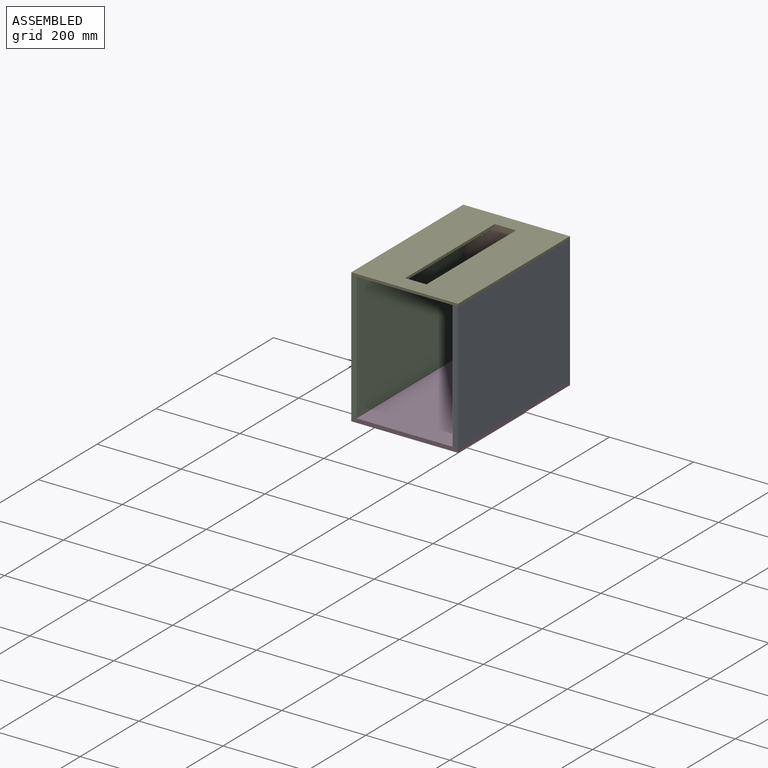
[diagram: assembled view]
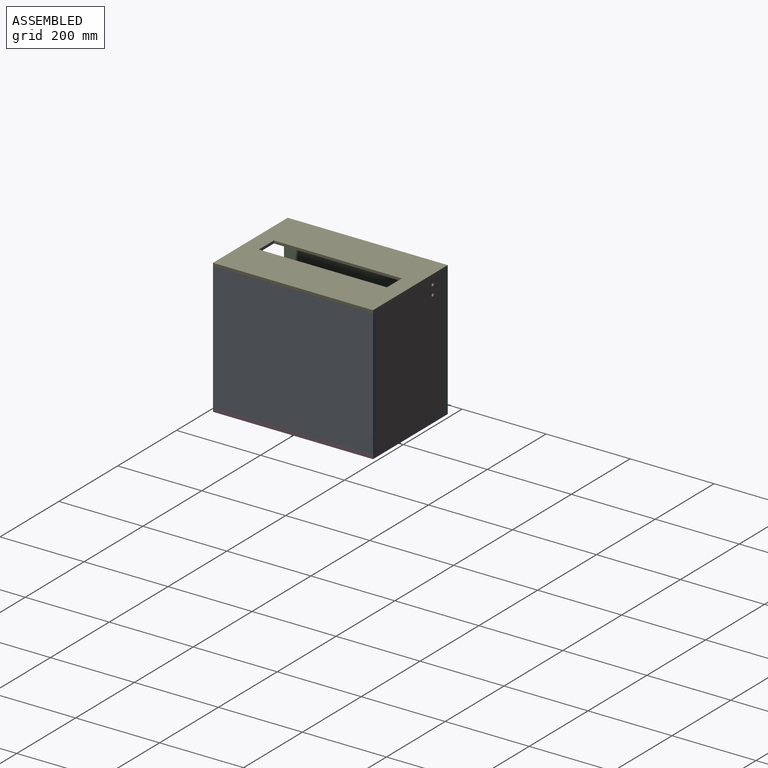
[diagram: assembled view, second angle]
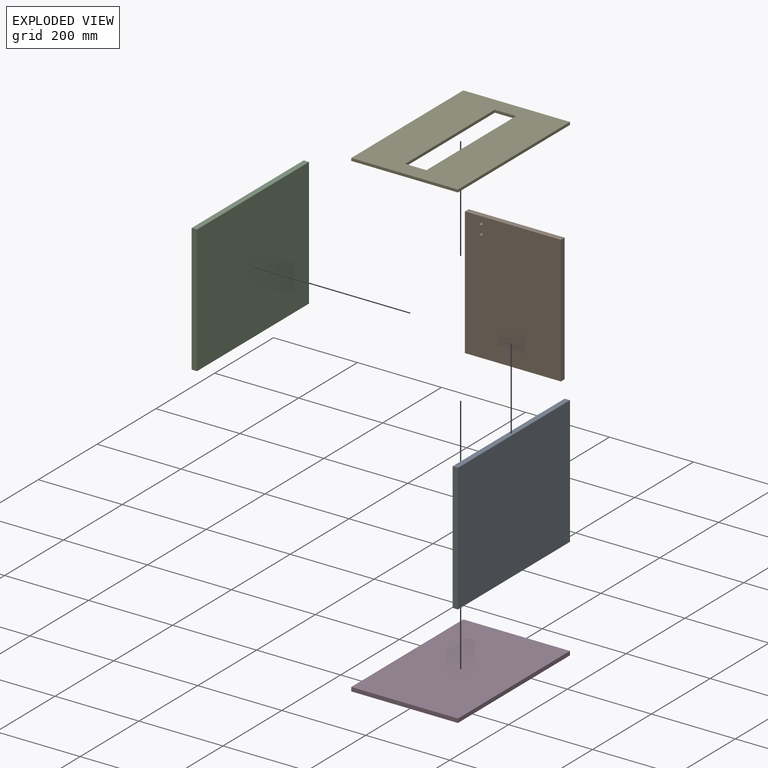
[diagram: exploded view]
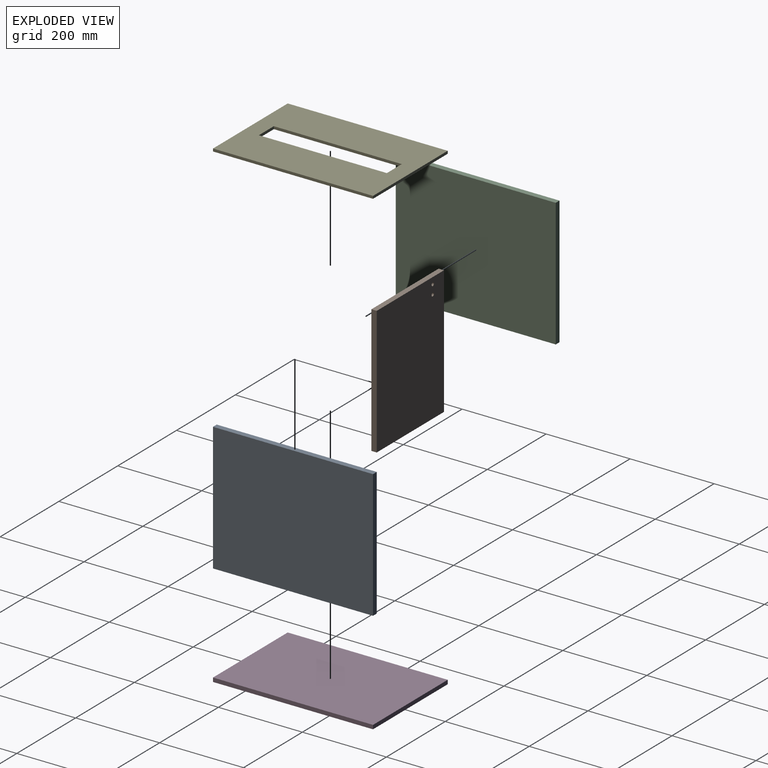
[diagram: exploded view, second angle]
ASSEMBLY  parts=5 mates=3
PART A: 6 faces, bbox 12.7x381x304.8 mm
  f0: plane 381x304.8mm, normal (-1,0,0), area 116128.8mm2, adj f1,f3,f4,f5
  f1: plane 304.8x12.7mm, normal (0,-1,0), area 3871mm2, adj f0,f2,f4,f5
  f2: plane 381x304.8mm, normal (1,0,0), area 116128.8mm2, adj f1,f3,f4,f5
  f3: plane 304.8x12.7mm, normal (0,1,0), area 3871mm2, adj f0,f2,f4,f5
  f4: plane 381x12.7mm, normal (0,0,1), area 4838.7mm2, adj f0,f1,f2,f3
  f5: plane 381x12.7mm, normal (0,0,-1), area 4838.7mm2, adj f0,f1,f2,f3
PART B: 8 faces, bbox 228.6x12.7x304.8 mm
  f0: plane 304.8x228.6mm, normal (0,-1,0), area 69578.3mm2, adj f1,f3,f4,f5,f6,f7
  f1: plane 304.8x12.7mm, normal (1,0,0), area 3871mm2, adj f0,f2,f4,f5
  f2: plane 304.8x228.6mm, normal (0,1,0), area 69578.3mm2, adj f1,f3,f4,f5,f6,f7
  f3: plane 304.8x12.7mm, normal (-1,0,0), area 3871mm2, adj f0,f2,f4,f5
  f4: plane 228.6x12.7mm, normal (0,0,1), area 2903.2mm2, adj f0,f1,f2,f3
  f5: plane 228.6x12.7mm, normal (0,0,-1), area 2903.2mm2, adj f0,f1,f2,f3
  f6: cylinder r=3.97mm len=12.7mm, axis (0,1,0), area 316.7mm2, adj f0,f2
  f7: cylinder r=3.97mm len=12.7mm, axis (0,1,0), area 316.7mm2, adj f0,f2
PART C: same geometry as A
PART D: 6 faces, bbox 254x381x9.5 mm
  f0: plane 254x9.53mm, normal (0,-1,0), area 2419.3mm2, adj f1,f3,f4,f5
  f1: plane 381x9.53mm, normal (1,0,0), area 3629mm2, adj f0,f2,f4,f5
  f2: plane 254x9.53mm, normal (0,1,0), area 2419.3mm2, adj f1,f3,f4,f5
  f3: plane 381x9.53mm, normal (-1,0,0), area 3629mm2, adj f0,f2,f4,f5
  f4: plane 381x254mm, normal (0,0,1), area 96774mm2, adj f0,f1,f2,f3
  f5: plane 381x254mm, normal (0,0,-1), area 96774mm2, adj f0,f1,f2,f3
PART E: 10 faces, bbox 254x381x6.4 mm
  f0: plane 304.8x6.35mm, normal (-1,0,0), area 1935.5mm2, adj f1,f7,f8,f9
  f1: plane 50.8x6.35mm, normal (0,1,0), area 322.6mm2, adj f0,f2,f8,f9
  f2: plane 304.8x6.35mm, normal (1,0,0), area 1935.5mm2, adj f1,f7,f8,f9
  f3: plane 254x6.35mm, normal (0,-1,0), area 1612.9mm2, adj f4,f6,f8,f9
  f4: plane 381x6.35mm, normal (1,0,0), area 2419.3mm2, adj f3,f5,f8,f9
  f5: plane 254x6.35mm, normal (0,1,0), area 1612.9mm2, adj f4,f6,f8,f9
  f6: plane 381x6.35mm, normal (-1,0,0), area 2419.3mm2, adj f3,f5,f8,f9
  f7: plane 50.8x6.35mm, normal (0,-1,0), area 322.6mm2, adj f0,f2,f8,f9
  f8: plane 381x254mm, normal (0,0,1), area 81290.2mm2, adj f0,f1,f2,f3,f4,f5,f6,f7
  f9: plane 381x254mm, normal (0,0,-1), area 81290.2mm2, adj f0,f1,f2,f3,f4,f5,f6,f7
PLACE A t=(112.43,-265.18,80.89)mm
PLACE B t=(125.13,-277.88,80.89)mm
PLACE C t=(-128.87,-265.18,80.89)mm
PLACE D t=(125.13,-265.18,71.36)mm
PLACE E t=(125.13,-265.18,385.69)mm
MATE fastened D.f4 <-> C.f5  axis (0,0,1) through (-128.87,-265.18,80.89)mm
MATE fastened E.f9 <-> A.f4  axis (0,0,1) through (125.13,-265.18,385.69)mm
MATE fastened C.f4 <-> E.f9  axis (0,0,1) through (-128.87,-265.18,385.69)mm
